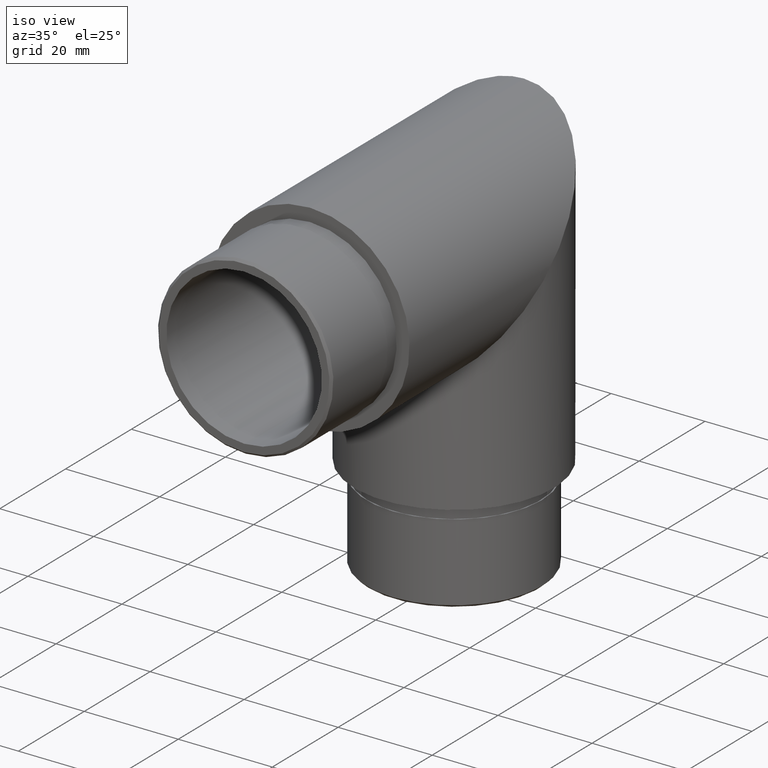
[diagram: clean part render]
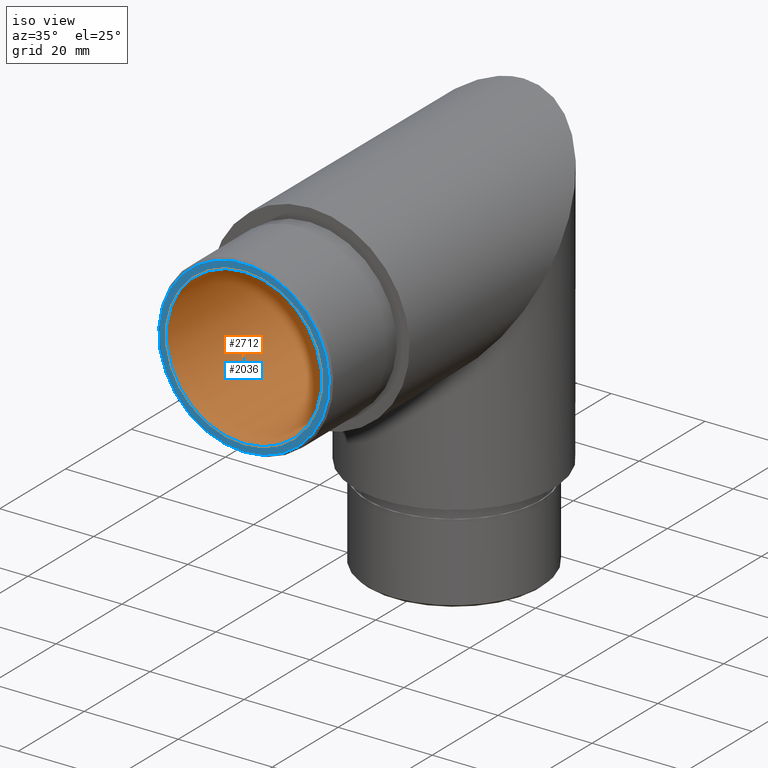
[diagram: same view with the hole feature highlighted: cylindrical wall and planar end face, labeled with their STEP entity ids]
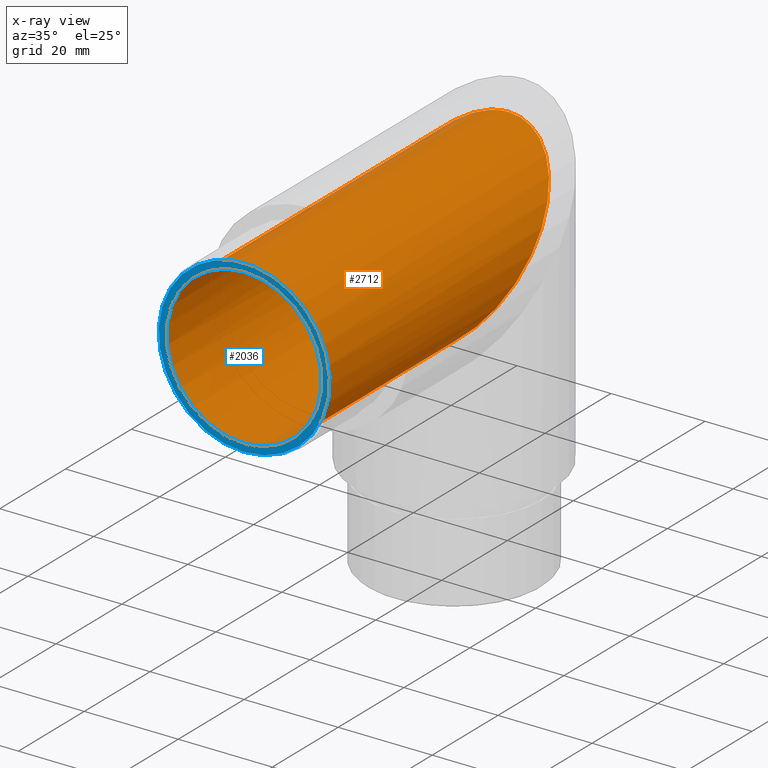
[diagram: x-ray of the same camera — body ghosted, the hole faces saturated]
A machine part, iso view. The highlighted faces form one hole feature of diameter 33.1 mm: the cylindrical wall (entity #2712, orange) and its adjacent planar end face (entity #2036, blue) — they share a circular edge in the B-rep.
The next image is the same camera in x-ray (body ghosted, the hole faces saturated) — the bore reads through the body.
Wall:
#304 = CARTESIAN_POINT ( 'NONE',  ( 33.09999999999998700, 27.24999999999994700, -16.54999999999999700 ) ) ;
#1066 =( BOUNDED_CURVE ( )  B_SPLINE_CURVE ( 3, ( #9220, #10184, #9139, #3295, #4296, #304, #8148 ),
 .UNSPECIFIED., .T., .T. ) 
 B_SPLINE_CURVE_WITH_KNOTS ( ( 4, 3, 4 ),
 ( 0.0000000000000000000, 3.141592653589793100, 6.283185307179586200 ),
 .UNSPECIFIED. ) 
 CURVE ( )  GEOMETRIC_REPRESENTATION_ITEM ( )  RATIONAL_B_SPLINE_CURVE ( ( 1.000000000000000000, 0.3333333333333333700, 0.3333333333333333700, 1.000000000000000000, 0.3333333333333333700, 0.3333333333333333700, 1.000000000000000000 ) ) 
 REPRESENTATION_ITEM ( '' )  );
#1783 = AXIS2_PLACEMENT_3D ( 'NONE', #7028, #12182, #12137 ) ;
#1878 = DIRECTION ( 'NONE',  ( 0.0000000000000000000, 0.0000000000000000000, -1.000000000000000000 ) ) ;
#1940 = EDGE_CURVE ( 'NONE', #4095, #4095, #2659, .T. ) ;
#2053 = EDGE_LOOP ( 'NONE', ( #7452 ) ) ;
#2659 = CIRCLE ( 'NONE', #1783, 16.54999999999999700 ) ;
#2712 = ADVANCED_FACE ( 'NONE', ( #12846, #7852 ), #6920, .F. ) ;
#3295 = CARTESIAN_POINT ( 'NONE',  ( -2.026790452588869400E-015, 60.35000000000006500, 16.54999999999999700 ) ) ;
#3664 = CARTESIAN_POINT ( 'NONE',  ( 0.0000000000000000000, -20.00000000000000000, -16.54999999999999700 ) ) ;
#4095 = VERTEX_POINT ( 'NONE', #3664 ) ;
#4267 = ORIENTED_EDGE ( 'NONE', *, *, #1940, .T. ) ;
#4296 = CARTESIAN_POINT ( 'NONE',  ( 33.09999999999998700, 60.35000000000007200, 16.55000000000000100 ) ) ;
#4887 = AXIS2_PLACEMENT_3D ( 'NONE', #10903, #11869, #1878 ) ;
#5603 = EDGE_LOOP ( 'NONE', ( #4267 ) ) ;
#6920 = CYLINDRICAL_SURFACE ( 'NONE', #4887, 16.54999999999999700 ) ;
#7028 = CARTESIAN_POINT ( 'NONE',  ( 0.0000000000000000000, -20.00000000000000000, 0.0000000000000000000 ) ) ;
#7452 = ORIENTED_EDGE ( 'NONE', *, *, #7597, .T. ) ;
#7597 = EDGE_CURVE ( 'NONE', #8900, #8900, #1066, .T. ) ;
#7852 = FACE_OUTER_BOUND ( 'NONE', #5603, .T. ) ;
#8148 = CARTESIAN_POINT ( 'NONE',  ( 0.0000000000000000000, 27.24999999999994700, -16.54999999999999700 ) ) ;
#8900 = VERTEX_POINT ( 'NONE', #12583 ) ;
#9139 = CARTESIAN_POINT ( 'NONE',  ( -33.09999999999998700, 60.35000000000007200, 16.54999999999999400 ) ) ;
#9220 = CARTESIAN_POINT ( 'NONE',  ( 0.0000000000000000000, 27.24999999999994700, -16.54999999999999700 ) ) ;
#10184 = CARTESIAN_POINT ( 'NONE',  ( -33.09999999999998700, 27.24999999999994700, -16.54999999999999700 ) ) ;
#10903 = CARTESIAN_POINT ( 'NONE',  ( 0.0000000000000000000, 103.7626550446192400, 0.0000000000000000000 ) ) ;
#11869 = DIRECTION ( 'NONE',  ( -0.0000000000000000000, -1.000000000000000000, -0.0000000000000000000 ) ) ;
#12137 = DIRECTION ( 'NONE',  ( 0.0000000000000000000, 0.0000000000000000000, -1.000000000000000000 ) ) ;
#12182 = DIRECTION ( 'NONE',  ( 0.0000000000000000000, -1.000000000000000000, 0.0000000000000000000 ) ) ;
#12583 = CARTESIAN_POINT ( 'NONE',  ( 0.0000000000000000000, 27.24999999999994700, -16.54999999999999700 ) ) ;
#12846 = FACE_OUTER_BOUND ( 'NONE', #2053, .T. ) ;
End face:
#229 = PLANE ( 'NONE',  #4706 ) ;
#543 = DIRECTION ( 'NONE',  ( 0.0000000000000000000, 0.0000000000000000000, -1.000000000000000000 ) ) ;
#1383 = EDGE_LOOP ( 'NONE', ( #1427 ) ) ;
#1427 = ORIENTED_EDGE ( 'NONE', *, *, #9417, .T. ) ;
#1783 = AXIS2_PLACEMENT_3D ( 'NONE', #7028, #12182, #12137 ) ;
#1940 = EDGE_CURVE ( 'NONE', #4095, #4095, #2659, .T. ) ;
#2036 = ADVANCED_FACE ( 'NONE', ( #4860, #10580 ), #229, .T. ) ;
#2505 = EDGE_LOOP ( 'NONE', ( #6548 ) ) ;
#2659 = CIRCLE ( 'NONE', #1783, 16.54999999999999700 ) ;
#2720 = CARTESIAN_POINT ( 'NONE',  ( 0.0000000000000000000, -20.00000000000000000, -18.15000000000002700 ) ) ;
#3664 = CARTESIAN_POINT ( 'NONE',  ( 0.0000000000000000000, -20.00000000000000000, -16.54999999999999700 ) ) ;
#4095 = VERTEX_POINT ( 'NONE', #3664 ) ;
#4583 = AXIS2_PLACEMENT_3D ( 'NONE', #11583, #12656, #543 ) ;
#4706 = AXIS2_PLACEMENT_3D ( 'NONE', #11313, #7306, #6279 ) ;
#4860 = FACE_OUTER_BOUND ( 'NONE', #1383, .T. ) ;
#6279 = DIRECTION ( 'NONE',  ( 0.0000000000000000000, -0.0000000000000000000, -1.000000000000000000 ) ) ;
#6548 = ORIENTED_EDGE ( 'NONE', *, *, #1940, .F. ) ;
#6894 = VERTEX_POINT ( 'NONE', #2720 ) ;
#7028 = CARTESIAN_POINT ( 'NONE',  ( 0.0000000000000000000, -20.00000000000000000, 0.0000000000000000000 ) ) ;
#7306 = DIRECTION ( 'NONE',  ( 0.0000000000000000000, -1.000000000000000000, 0.0000000000000000000 ) ) ;
#9417 = EDGE_CURVE ( 'NONE', #6894, #6894, #11144, .T. ) ;
#10580 = FACE_BOUND ( 'NONE', #2505, .T. ) ;
#11144 = CIRCLE ( 'NONE', #4583, 18.15000000000002700 ) ;
#11313 = CARTESIAN_POINT ( 'NONE',  ( 0.0000000000000000000, -20.00000000000000000, 0.0000000000000000000 ) ) ;
#11583 = CARTESIAN_POINT ( 'NONE',  ( 0.0000000000000000000, -20.00000000000000000, 0.0000000000000000000 ) ) ;
#12137 = DIRECTION ( 'NONE',  ( 0.0000000000000000000, 0.0000000000000000000, -1.000000000000000000 ) ) ;
#12182 = DIRECTION ( 'NONE',  ( 0.0000000000000000000, -1.000000000000000000, 0.0000000000000000000 ) ) ;
#12656 = DIRECTION ( 'NONE',  ( 0.0000000000000000000, -1.000000000000000000, 0.0000000000000000000 ) ) ;